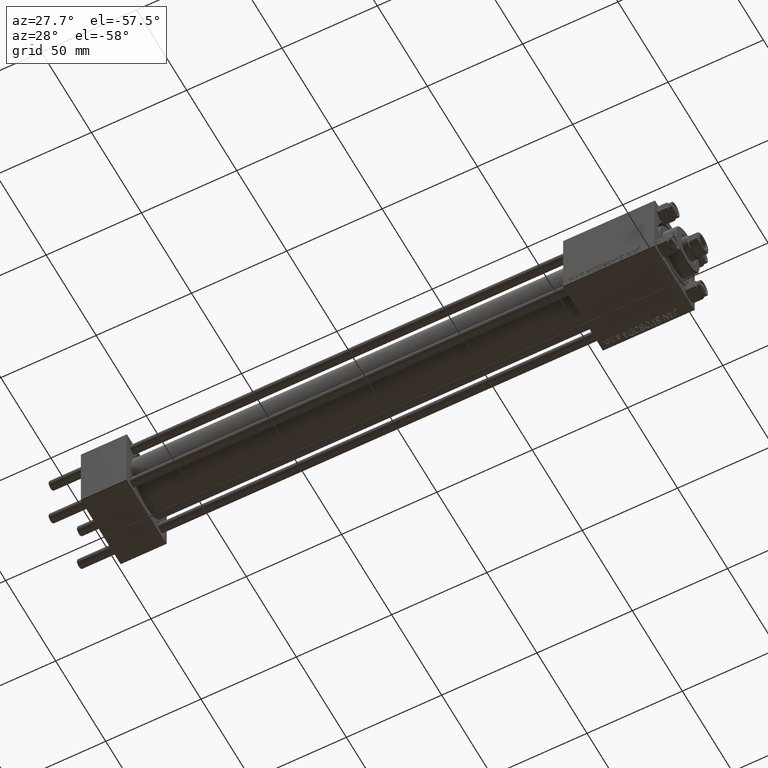
[diagram: clean part render]
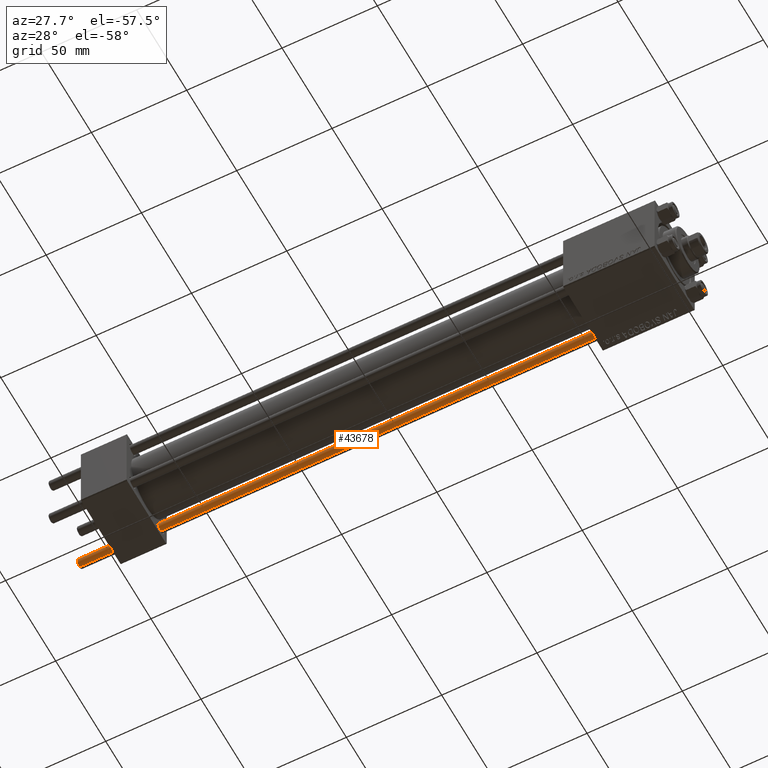
[diagram: same view with one face highlighted and labeled with its STEP entity id]
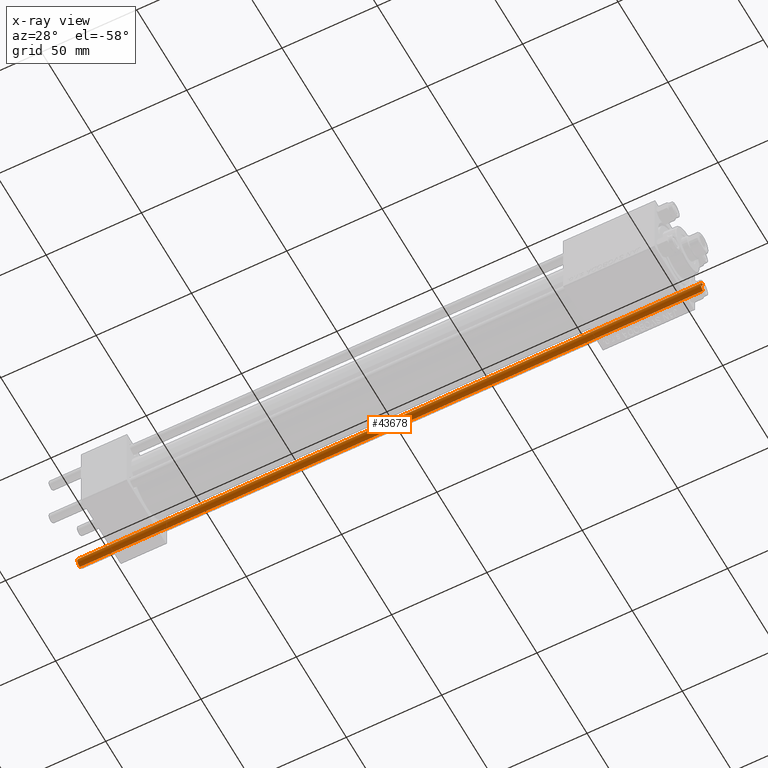
[diagram: x-ray of the same camera — body ghosted, the highlighted face saturated]
A machine part, auxiliary view. The second image highlights one B-rep face of the part: STEP entity #43678.
The next image is the same camera in x-ray: the body ghosted, the highlighted face saturated — about 0% of this face is hidden behind the body in this view.
In plain terms, the highlighted cylindrical surface (edge-blend (fillet) strip) has radius 2.5 mm, axis along (1, 0, -0).
Its self-contained STEP definition (entity closure, byte-faithful):
#1287 = CIRCLE ( 'NONE', #13337, 2.500000000000000000 ) ;
#1351 = EDGE_LOOP ( 'NONE', ( #47597, #25356, #46864, #8598 ) ) ;
#3514 = DIRECTION ( 'NONE',  ( -0.000000000000000000, -0.000000000000000000, 1.000000000000000000 ) ) ;
#4252 = CARTESIAN_POINT ( 'NONE',  ( 0.000000000000000000, 0.000000000000000000, 0.5000000000000004441 ) ) ;
#5391 = DIRECTION ( 'NONE',  ( 1.000000000000000000, 0.000000000000000000, 0.000000000000000000 ) ) ;
#7786 = DIRECTION ( 'NONE',  ( 1.000000000000000000, 0.000000000000000000, 0.000000000000000000 ) ) ;
#8598 = ORIENTED_EDGE ( 'NONE', *, *, #49831, .T. ) ;
#9173 = EDGE_CURVE ( 'NONE', #45574, #43679, #38604, .T. ) ;
#9267 = AXIS2_PLACEMENT_3D ( 'NONE', #30114, #26342, #12213 ) ;
#12213 = DIRECTION ( 'NONE',  ( -1.000000000000000000, 0.000000000000000000, 0.000000000000000000 ) ) ;
#13337 = AXIS2_PLACEMENT_3D ( 'NONE', #39871, #47681, #5391 ) ;
#14772 = CYLINDRICAL_SURFACE ( 'NONE', #9267, 2.500000000000000000 ) ;
#20377 = EDGE_CURVE ( 'NONE', #24254, #35179, #21559, .T. ) ;
#21559 = LINE ( 'NONE', #45239, #21998 ) ;
#21733 = CARTESIAN_POINT ( 'NONE',  ( 2.500000000000000000, 3.061616997868383141E-16, 327.4999999999999432 ) ) ;
#21799 = CARTESIAN_POINT ( 'NONE',  ( -2.500000000000000000, 0.000000000000000000, 327.4999999999999432 ) ) ;
#21998 = VECTOR ( 'NONE', #22054, 1000.000000000000000 ) ;
#22054 = DIRECTION ( 'NONE',  ( -0.000000000000000000, -0.000000000000000000, -1.000000000000000000 ) ) ;
#22949 = CARTESIAN_POINT ( 'NONE',  ( -2.500000000000000000, 0.000000000000000000, 0.5000000000000004441 ) ) ;
#23971 = DIRECTION ( 'NONE',  ( -0.000000000000000000, -0.000000000000000000, -1.000000000000000000 ) ) ;
#24254 = VERTEX_POINT ( 'NONE', #21799 ) ;
#25356 = ORIENTED_EDGE ( 'NONE', *, *, #29641, .T. ) ;
#26342 = DIRECTION ( 'NONE',  ( -0.000000000000000000, -0.000000000000000000, -1.000000000000000000 ) ) ;
#29641 = EDGE_CURVE ( 'NONE', #45574, #24254, #1287, .T. ) ;
#30114 = CARTESIAN_POINT ( 'NONE',  ( 0.000000000000000000, 0.000000000000000000, 328.0000000000000000 ) ) ;
#30592 = VECTOR ( 'NONE', #23971, 1000.000000000000000 ) ;
#31027 = CARTESIAN_POINT ( 'NONE',  ( 2.500000000000000000, 3.061616997868383141E-16, 328.0000000000000000 ) ) ;
#32693 = CIRCLE ( 'NONE', #38324, 2.500000000000000000 ) ;
#33893 = FACE_OUTER_BOUND ( 'NONE', #1351, .T. ) ;
#35179 = VERTEX_POINT ( 'NONE', #22949 ) ;
#38324 = AXIS2_PLACEMENT_3D ( 'NONE', #4252, #3514, #7786 ) ;
#38604 = LINE ( 'NONE', #31027, #30592 ) ;
#39659 = CARTESIAN_POINT ( 'NONE',  ( 2.500000000000000000, 3.061616997868383141E-16, 0.5000000000000004441 ) ) ;
#39871 = CARTESIAN_POINT ( 'NONE',  ( 0.000000000000000000, 0.000000000000000000, 327.4999999999999432 ) ) ;
#43678 = ADVANCED_FACE ( 'NONE', ( #33893 ), #14772, .T. ) ;
#43679 = VERTEX_POINT ( 'NONE', #39659 ) ;
#45239 = CARTESIAN_POINT ( 'NONE',  ( -2.500000000000000000, 0.000000000000000000, 328.0000000000000000 ) ) ;
#45574 = VERTEX_POINT ( 'NONE', #21733 ) ;
#46864 = ORIENTED_EDGE ( 'NONE', *, *, #20377, .T. ) ;
#47597 = ORIENTED_EDGE ( 'NONE', *, *, #9173, .F. ) ;
#47681 = DIRECTION ( 'NONE',  ( 0.000000000000000000, 0.000000000000000000, -1.000000000000000000 ) ) ;
#49831 = EDGE_CURVE ( 'NONE', #35179, #43679, #32693, .T. ) ;